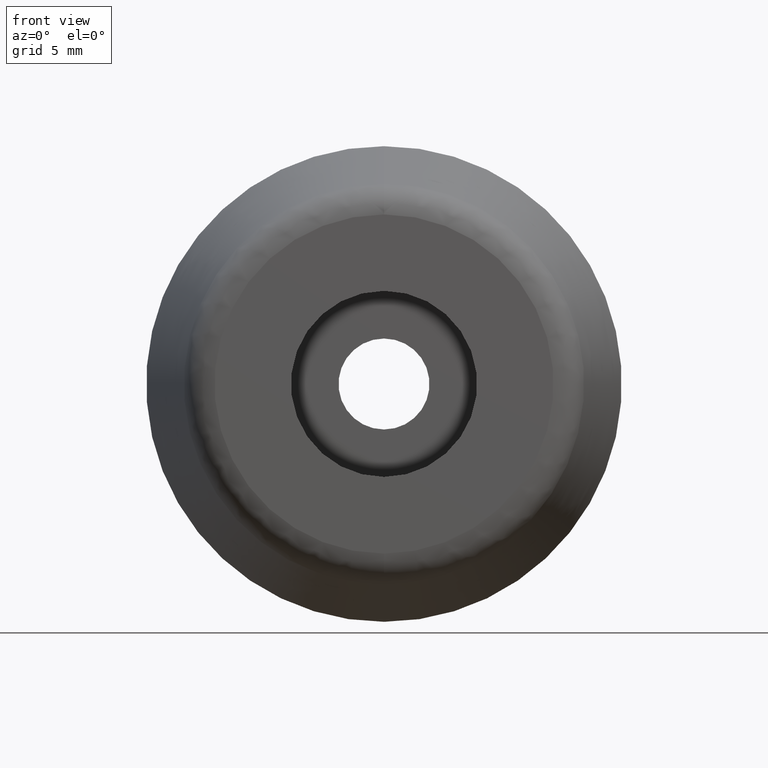
[diagram: clean part render]
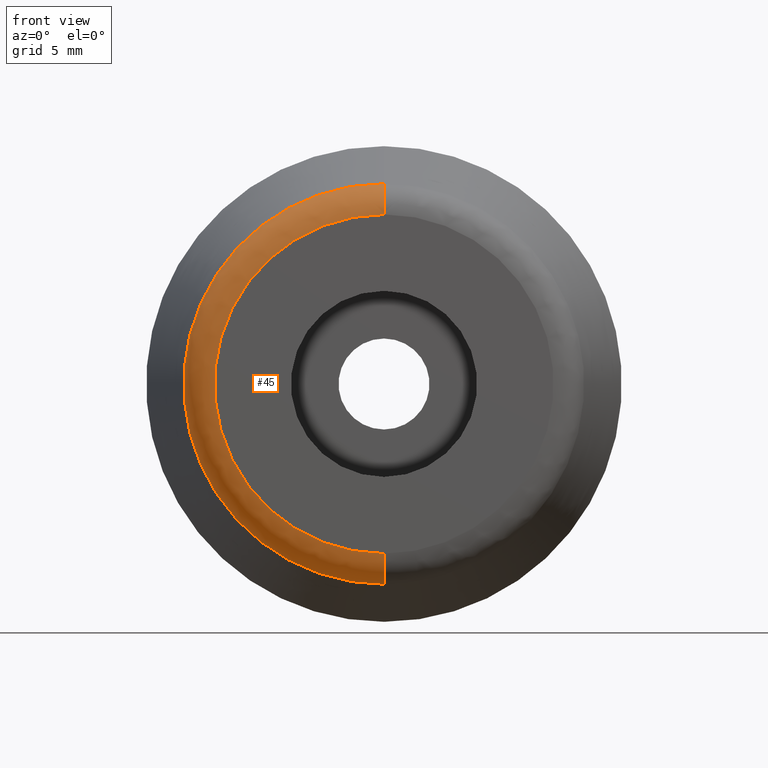
[diagram: same view with one face highlighted and labeled with its STEP entity id]
A machine part, front view. The second image highlights one B-rep face of the part: STEP entity #45.
In plain terms, the highlighted face is a freeform B-spline surface patch.
Its self-contained STEP definition (entity closure, byte-faithful):
#45=ADVANCED_FACE('',(#105),#104,.T.);
#104=( BOUNDED_SURFACE() B_SPLINE_SURFACE( 2,2,((#192,#193,#194,#195,#196),(#197,#198,#199,#200,#201),(#202,#203,#204,#205,#206),(#207,#208,#209,#210,#211),(#212,#213,#214,#215,#216)), .UNSPECIFIED.,.F.,.F.,.F.) B_SPLINE_SURFACE_WITH_KNOTS((3,2,3),(3,2,3),(0.00000000000E+00,5.00000000000E-01,1.00000000000E+00),(0.00000000000E+00,5.00000000000E-01,1.00000000000E+00), .UNSPECIFIED. ) GEOMETRIC_REPRESENTATION_ITEM() RATIONAL_B_SPLINE_SURFACE(((1.00000000000E+00,7.55453954996E-01,1.00000000000E+00,7.55453954996E-01,1.00000000000E+00),(7.07106781187E-01,5.34186614452E-01,7.07106781187E-01,5.34186614452E-01,7.07106781187E-01),(1.00000000000E+00,7.55453954996E-01,1.00000000000E+00,7.55453954996E-01,1.00000000000E+00),(7.07106781187E-01,5.34186614452E-01,7.07106781187E-01,5.34186614452E-01,7.07106781187E-01),(1.00000000000E+00,7.55453954996E-01,1.00000000000E+00,7.55453954996E-01,1.00000000000E+00))) REPRESENTATION_ITEM('') SURFACE() );
#105=FACE_OUTER_BOUND('',#217,.T.);
#192=CARTESIAN_POINT('',(-1.50636942910E-14,-1.27121320344E+01,9.68398113795E+00));
#193=CARTESIAN_POINT('',(-1.50411638439E-14,-1.40000000000E+01,9.50000000000E+00));
#194=CARTESIAN_POINT('',(-1.48818495250E-14,-1.40000000000E+01,8.19905689746E+00));
#195=CARTESIAN_POINT('',(-1.47225352061E-14,-1.40000000000E+01,6.89811379491E+00));
#196=CARTESIAN_POINT('',(-1.47000047590E-14,-1.27121320344E+01,6.71413265697E+00));
#197=CARTESIAN_POINT('',(-9.68398113795E+00,-1.27121320344E+01,9.68398113795E+00));
#198=CARTESIAN_POINT('',(-9.50000000000E+00,-1.40000000000E+01,9.50000000000E+00));
#199=CARTESIAN_POINT('',(-8.19905689746E+00,-1.40000000000E+01,8.19905689746E+00));
#200=CARTESIAN_POINT('',(-6.89811379491E+00,-1.40000000000E+01,6.89811379491E+00));
#201=CARTESIAN_POINT('',(-6.71413265697E+00,-1.27121320344E+01,6.71413265697E+00));
#202=CARTESIAN_POINT('',(-9.68398113795E+00,-1.27121320344E+01,-5.92933658003E-16));
#203=CARTESIAN_POINT('',(-9.50000000000E+00,-1.40000000000E+01,-5.81668806536E-16));
#204=CARTESIAN_POINT('',(-8.19905689746E+00,-1.40000000000E+01,-5.02014277923E-16));
#205=CARTESIAN_POINT('',(-6.89811379491E+00,-1.40000000000E+01,-4.22359749309E-16));
#206=CARTESIAN_POINT('',(-6.71413265697E+00,-1.27121320344E+01,-4.11094897842E-16));
#207=CARTESIAN_POINT('',(-9.68398113795E+00,-1.27121320344E+01,-9.68398113795E+00));
#208=CARTESIAN_POINT('',(-9.50000000000E+00,-1.40000000000E+01,-9.50000000000E+00));
#209=CARTESIAN_POINT('',(-8.19905689746E+00,-1.40000000000E+01,-8.19905689746E+00));
#210=CARTESIAN_POINT('',(-6.89811379491E+00,-1.40000000000E+01,-6.89811379491E+00));
#211=CARTESIAN_POINT('',(-6.71413265697E+00,-1.27121320344E+01,-6.71413265697E+00));
#212=CARTESIAN_POINT('',(-1.38778269750E-14,-1.27121320344E+01,-9.68398113795E+00));
#213=CARTESIAN_POINT('',(-1.38778262309E-14,-1.40000000000E+01,-9.50000000000E+00));
#214=CARTESIAN_POINT('',(-1.38778209692E-14,-1.40000000000E+01,-8.19905689746E+00));
#215=CARTESIAN_POINT('',(-1.38778157075E-14,-1.40000000000E+01,-6.89811379491E+00));
#216=CARTESIAN_POINT('',(-1.38778149633E-14,-1.27121320344E+01,-6.71413265697E+00));
#217=EDGE_LOOP('',(#296,#297,#298,#299));
#296=ORIENTED_EDGE('',*,*,#325,.F.);
#297=ORIENTED_EDGE('',*,*,#334,.F.);
#298=ORIENTED_EDGE('',*,*,#335,.T.);
#299=ORIENTED_EDGE('',*,*,#336,.T.);
#325=EDGE_CURVE('',#371,#370,#378,.T.);
#334=EDGE_CURVE('',#438,#371,#439,.T.);
#335=EDGE_CURVE('',#438,#445,#446,.T.);
#336=EDGE_CURVE('',#445,#370,#452,.T.);
#370=VERTEX_POINT('',#508);
#371=VERTEX_POINT('',#509);
#378=CIRCLE('',#517,8.19905689746E+00);
#438=VERTEX_POINT('',#552);
#439=(BOUNDED_CURVE() B_SPLINE_CURVE(2,(#553,#554,#555),.UNSPECIFIED.,.F.,.F.) B_SPLINE_CURVE_WITH_KNOTS((3,3),(0.00000000000E+00,5.00000000000E-01),.UNSPECIFIED.) CURVE() GEOMETRIC_REPRESENTATION_ITEM() RATIONAL_B_SPLINE_CURVE((1.00000000000E+00,7.55453954996E-01,1.00000000000E+00)) REPRESENTATION_ITEM('') );
#445=VERTEX_POINT('',#556);
#446=CIRCLE('',#560,9.68398113795E+00);
#452=(BOUNDED_CURVE() B_SPLINE_CURVE(3,(#561,#562,#563,#564,#565),.UNSPECIFIED.,.F.,.F.) B_SPLINE_CURVE_WITH_KNOTS((4,1,4),(0.00000000000E+00,2.50000001635E-01,5.00000002904E-01),.UNSPECIFIED.) CURVE() GEOMETRIC_REPRESENTATION_ITEM() RATIONAL_B_SPLINE_CURVE((1.00000000000E+00,1.00000000000E+00,1.00000000000E+00,1.00000000000E+00,1.00000000000E+00)) REPRESENTATION_ITEM('') );
#508=CARTESIAN_POINT('',(-1.42108547152E-14,-1.40000000000E+01,-8.19905689746E+00));
#509=CARTESIAN_POINT('',(-1.36187357687E-14,-1.40000000000E+01,8.19905689746E+00));
#514=CARTESIAN_POINT('',(-1.42108547152E-14,-1.40000000000E+01,0.00000000000E+00));
#515=DIRECTION('',(0.00000000000E+00,-1.00000000000E+00,-0.00000000000E+00));
#516=DIRECTION('',(-1.22460635382E-16,0.00000000000E+00,-1.00000000000E+00));
#517=AXIS2_PLACEMENT_3D('',#514,#515,#516);
#552=CARTESIAN_POINT('',(-1.36187357687E-14,-1.27121320344E+01,9.68398113795E+00));
#553=CARTESIAN_POINT('',(-1.50636942910E-14,-1.27121320344E+01,9.68398113795E+00));
#554=CARTESIAN_POINT('',(-1.50411638439E-14,-1.40000000000E+01,9.50000000000E+00));
#555=CARTESIAN_POINT('',(-1.48818495250E-14,-1.40000000000E+01,8.19905689746E+00));
#556=CARTESIAN_POINT('',(-1.42108547152E-14,-1.27121320344E+01,-9.68398113795E+00));
#557=CARTESIAN_POINT('',(-1.42108547152E-14,-1.27121320344E+01,0.00000000000E+00));
#558=DIRECTION('',(0.00000000000E+00,-1.00000000000E+00,-0.00000000000E+00));
#559=DIRECTION('',(-1.22460635382E-16,0.00000000000E+00,-1.00000000000E+00));
#560=AXIS2_PLACEMENT_3D('',#557,#558,#559);
#561=CARTESIAN_POINT('',(-1.30266168223E-14,-1.27121320344E+01,-9.68398113795E+00));
#562=CARTESIAN_POINT('',(-1.30018443138E-14,-1.30633848524E+01,-9.63609355625E+00));
#563=CARTESIAN_POINT('',(-1.28489767774E-14,-1.37335352640E+01,-9.26889635104E+00));
#564=CARTESIAN_POINT('',(-1.25701768261E-14,-1.40022683653E+01,-8.55355176159E+00));
#565=CARTESIAN_POINT('',(-1.24344978836E-14,-1.40000000000E+01,-8.19905688604E+00));